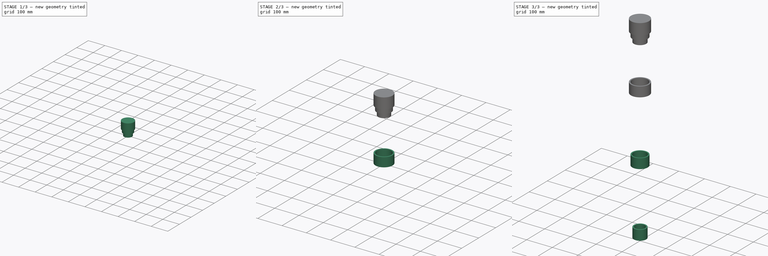
[diagram: build sequence overview — one tinted view per stage of 3, left to right]
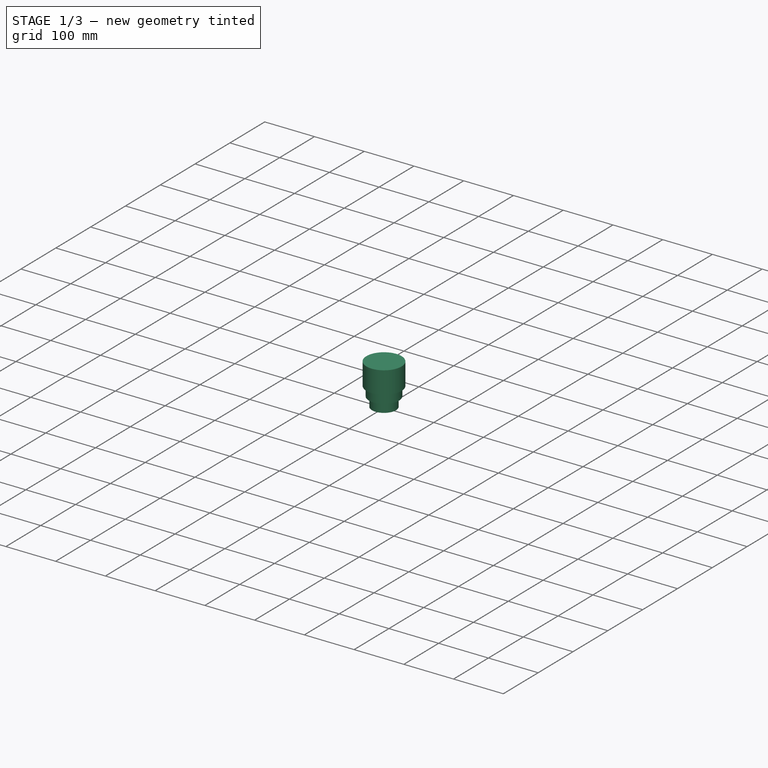
[diagram: stage 1 of 3 — iso view after this stage's code; geometry added in this stage tinted green]
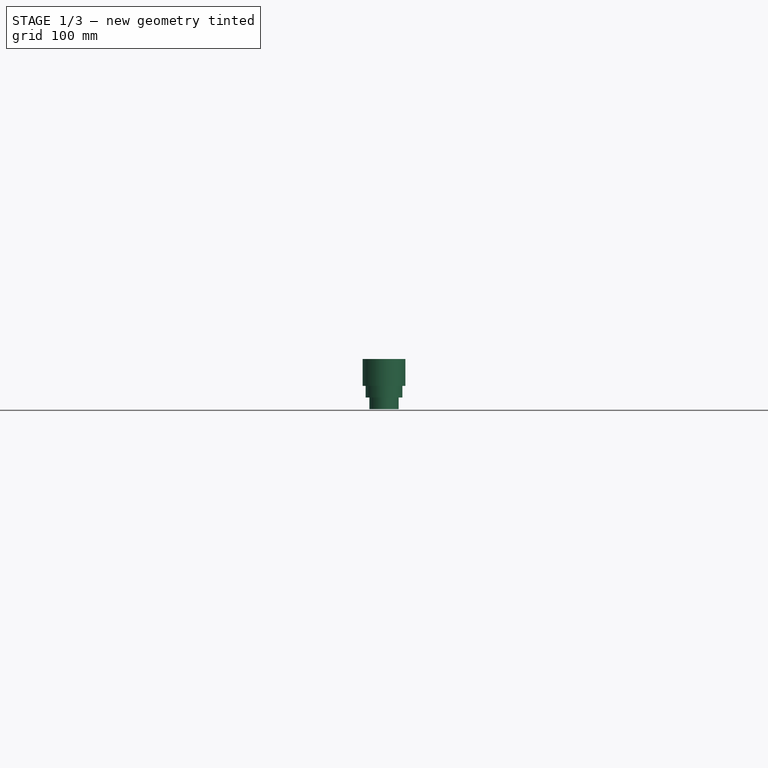
[diagram: stage 1 of 3 — front view after this stage's code; geometry added in this stage tinted green]
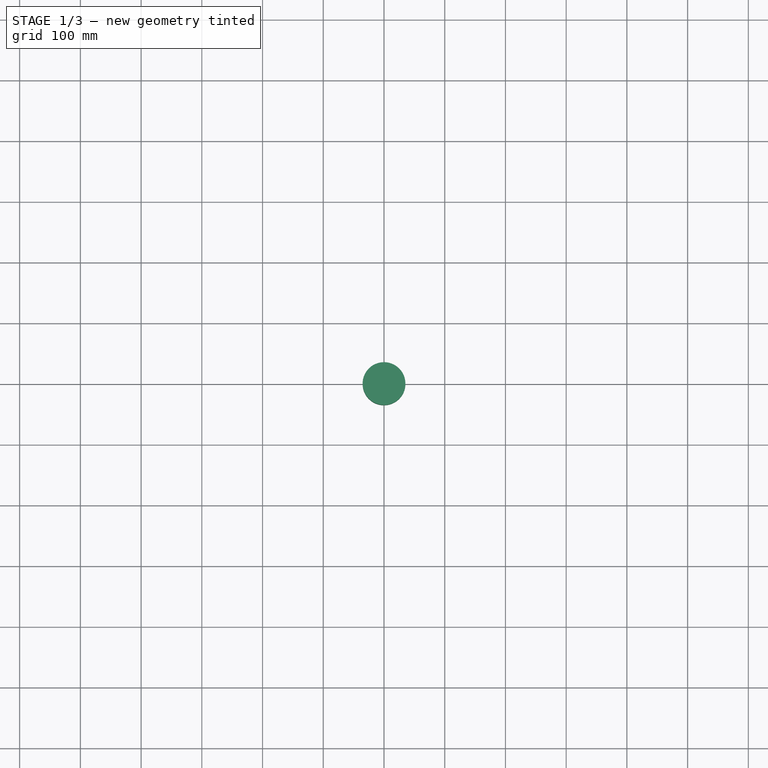
[diagram: stage 1 of 3 — top view after this stage's code; geometry added in this stage tinted green]
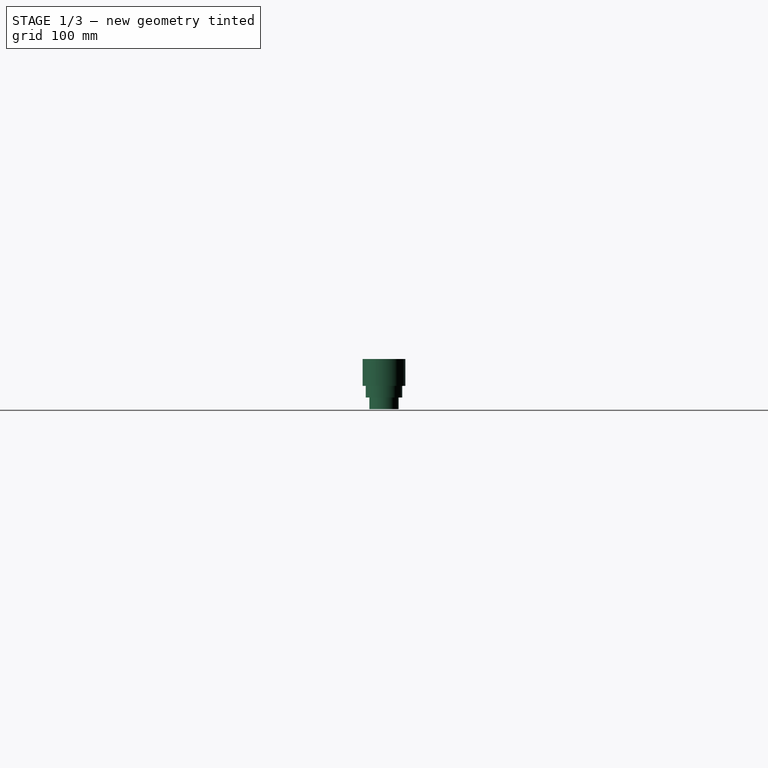
[diagram: stage 1 of 3 — right view after this stage's code; geometry added in this stage tinted green]
FCSTD DOCUMENT  (FreeCAD 0.16R6712 (Git))
Label: Tank FIller Cap
License: All rights reserved
LicenseURL: http://en.wikipedia.org/wiki/All_rights_reserved
objects: Sketcher::SketchObject×3, PartDesign::Pad×3, Part::Feature×3, App::FeaturePython×3, Part::Cylinder×1, Part::Compound×1
note: 14 computed .brp shape members not serialized (recipe doc carries the construction recipe); baked Part::Feature solids carry a one-line shape summary decoded from their .brp

FEATURE [Part::Cylinder] Cylinder  label="end"
  Angle = 360
  Height = 6.35
  Placement = pos=(0,0,762) rot=(0,0,1;0rad)
  Radius = 35.2425
FEATURE [Part::Feature] Pad002001  label="screw cap"
  Placement = pos=(0,0,723.9) rot=(0,0,1;0rad)
  shape: bbox 70.49 x 70.49 x 38.1 mm, 4 faces (baked)
FEATURE [Part::Feature] Pad001001  label="Pad001 2in NPT001"
  Placement = pos=(0,0,704.85) rot=(0,0,1;0rad)
  shape: bbox 60.33 x 60.33 x 38.1 mm, 4 faces (baked)
FEATURE [Part::Feature] Pad002002  label="Pad 1.5in NPT001"
  Placement = pos=(0,0,685.8) rot=(0,0,1;0rad)
  shape: bbox 48.26 x 48.26 x 38.1 mm, 4 faces (baked)
FEATURE [App::FeaturePython] planeConstraint01  # a2plus constraint (typed FeaturePython)
  Object1 = Cylinder
  Object2 = Pad002001
  SubElement1 = Face3
  SubElement2 = Face4
  Type = plane
  directionConstraint = 1
  offset = 0
FEATURE [App::FeaturePython] planeConstraint02  # a2plus constraint (typed FeaturePython)
  Object1 = Pad001001
  Object2 = Pad002001
  SubElement1 = Face4
  SubElement2 = Face3
  Type = plane
  directionConstraint = 0
  offset = -19.05
FEATURE [App::FeaturePython] planeConstraint03  # a2plus constraint (typed FeaturePython)
  Object1 = Pad002002
  Object2 = Pad001001
  SubElement1 = Face4
  SubElement2 = Face3
  Type = plane
  directionConstraint = 0
  offset = -19.05
FEATURE [Part::Compound] Compound  label="Power Cube Tank Filler Cap"
  Links = -> [Cylinder,Pad002002,Pad001001,Pad002001]
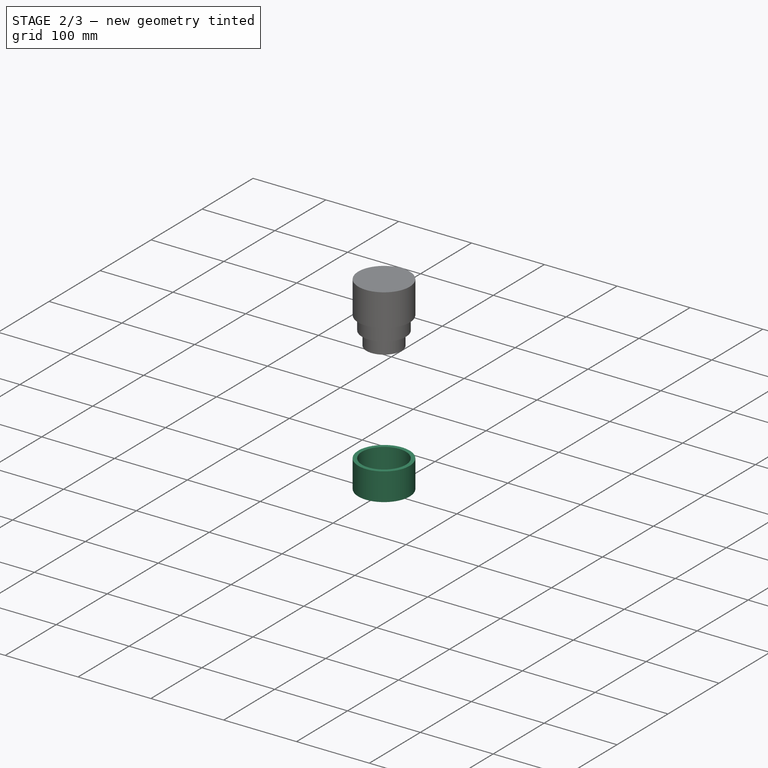
[diagram: stage 2 of 3 — iso view after this stage's code; geometry added in this stage tinted green]
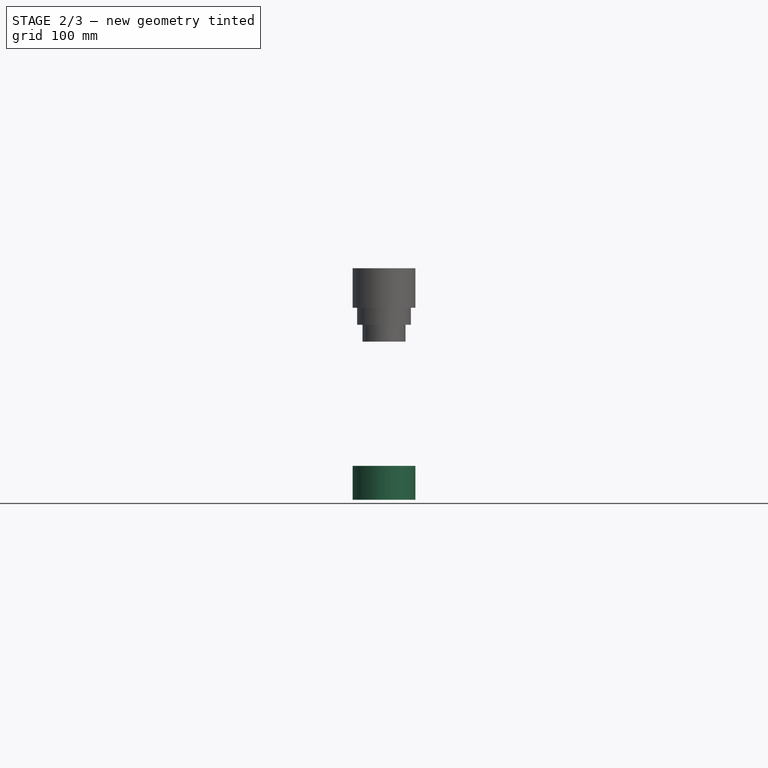
[diagram: stage 2 of 3 — front view after this stage's code; geometry added in this stage tinted green]
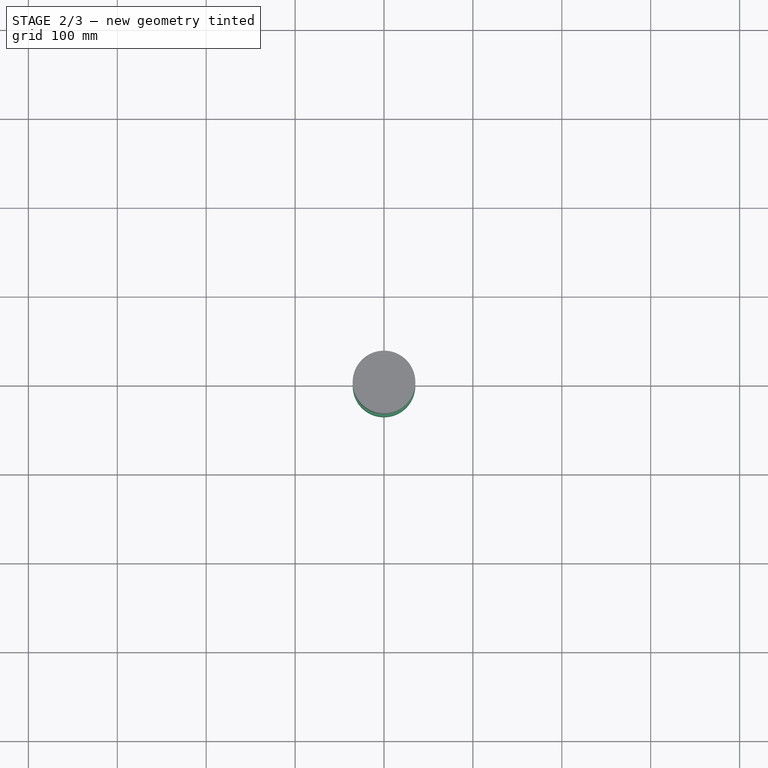
[diagram: stage 2 of 3 — top view after this stage's code; geometry added in this stage tinted green]
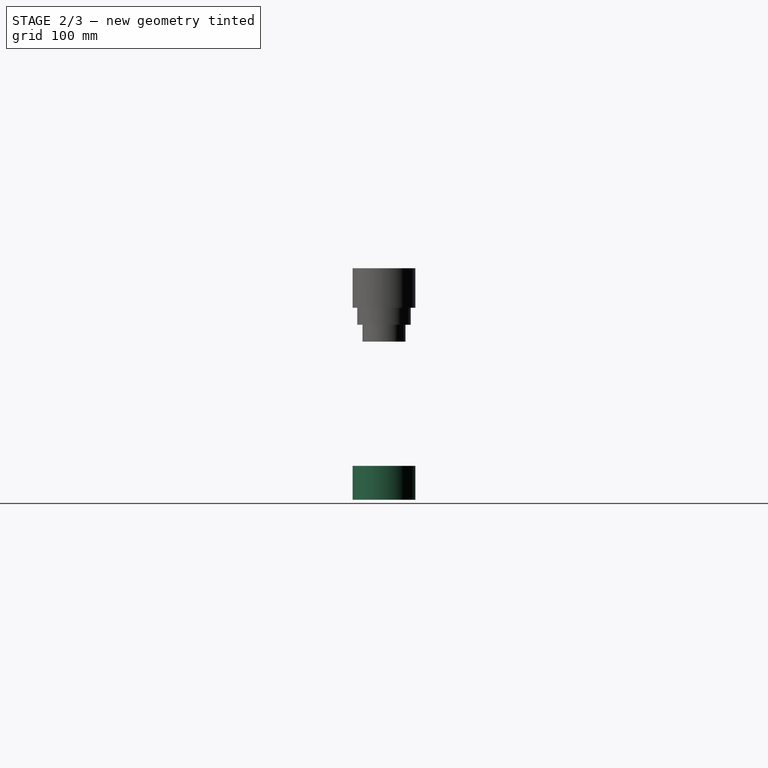
[diagram: stage 2 of 3 — right view after this stage's code; geometry added in this stage tinted green]
FEATURE [Sketcher::SketchObject] Sketch002
  Placement = pos=(0,0,508) rot=(0,0,1;0rad)
  sketch-geometry (2):
    g0: Circle CenterX=0 CenterY=0 CenterZ=0 NormalX=0 NormalY=0 NormalZ=1 Radius=30.1625
    g1: Circle CenterX=0 CenterY=0 CenterZ=0 NormalX=0 NormalY=0 NormalZ=1 Radius=35.2425
  constraints (4):
    c: Coincident(g0,g-1)
    c: Radius(g0) = 30.1625
    c: Coincident(g1,g-1)
    c: Radius(g1) = 35.2425  'cap'
FEATURE [PartDesign::Pad] Pad002
  Length = 38.1
  Length2 = 100
  Placement = pos=(0,0,508) rot=(0,0,1;0rad)
  Sketch = -> Sketch002
  Type = 0
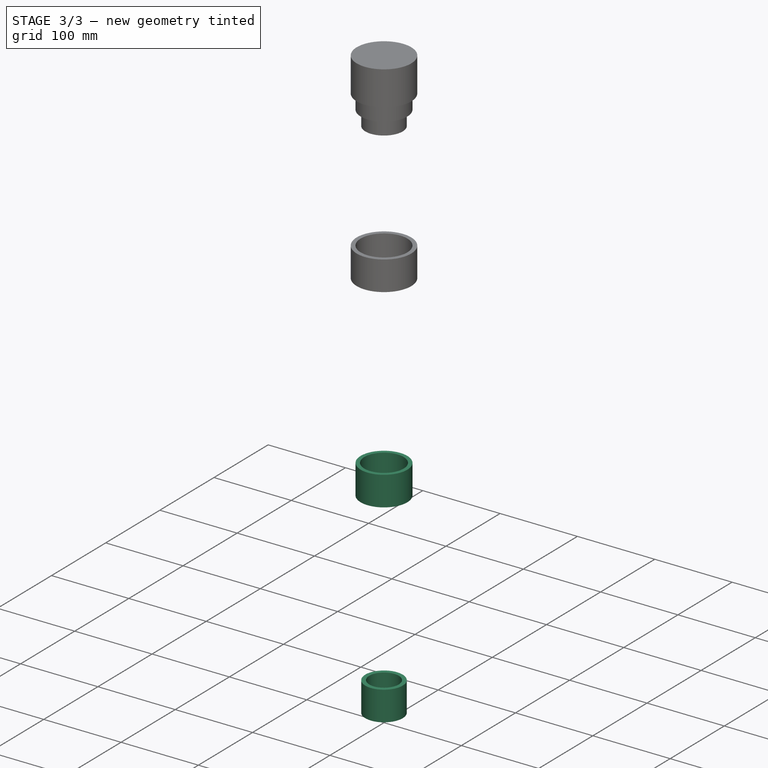
[diagram: stage 3 of 3 — iso view after this stage's code; geometry added in this stage tinted green]
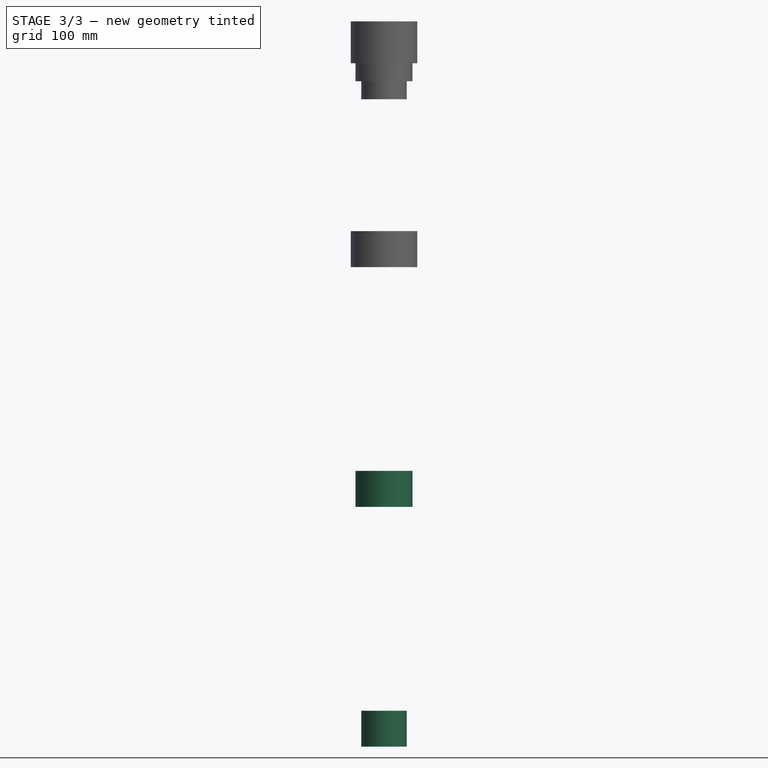
[diagram: stage 3 of 3 — front view after this stage's code; geometry added in this stage tinted green]
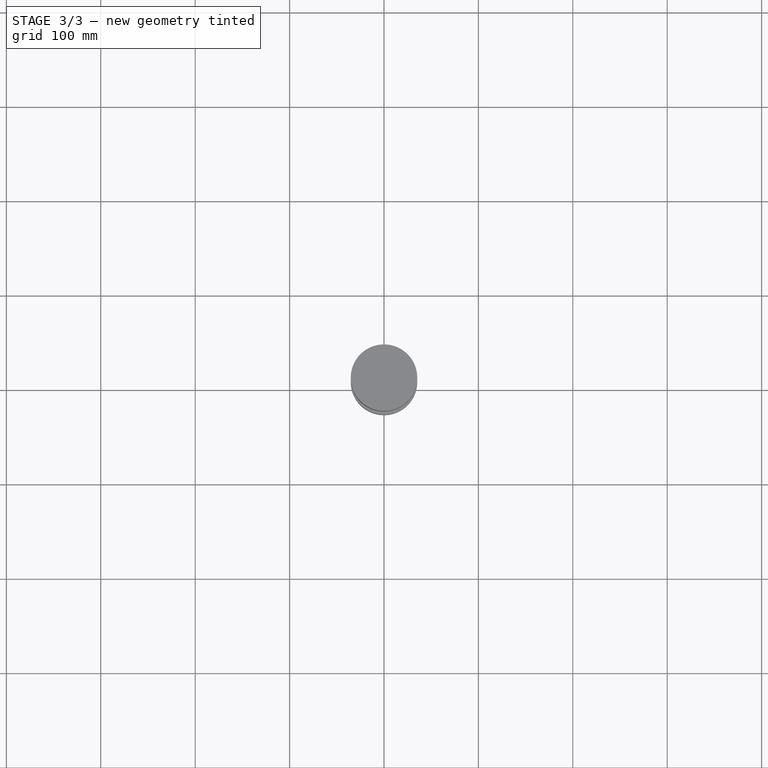
[diagram: stage 3 of 3 — top view after this stage's code; geometry added in this stage tinted green]
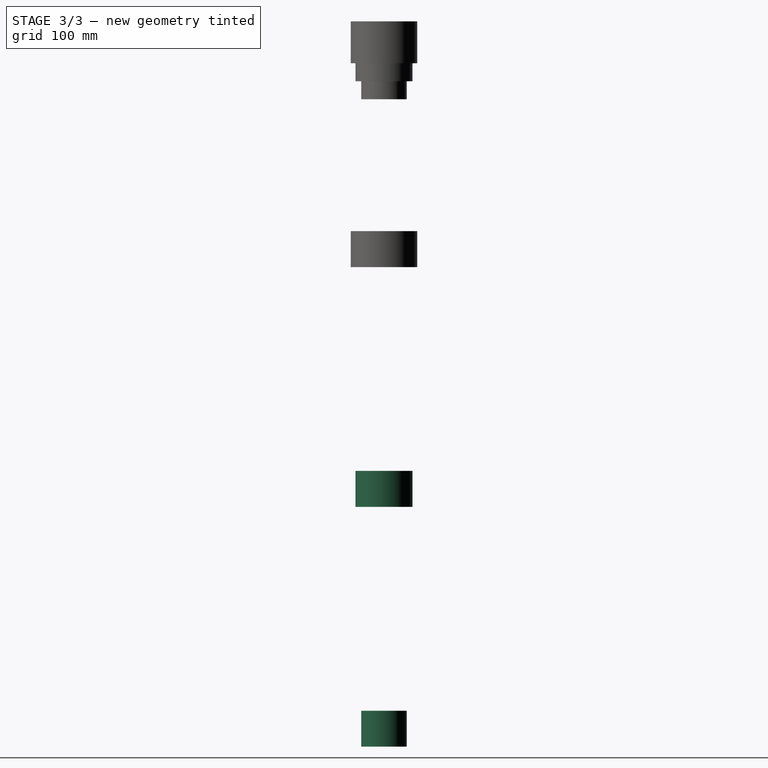
[diagram: stage 3 of 3 — right view after this stage's code; geometry added in this stage tinted green]
FEATURE [Sketcher::SketchObject] Sketch
  sketch-geometry (2):
    g0: Circle CenterX=0 CenterY=0 CenterZ=0 NormalX=0 NormalY=0 NormalZ=1 Radius=24.13
    g1: Circle CenterX=0 CenterY=0 CenterZ=0 NormalX=0 NormalY=0 NormalZ=1 Radius=19.05
  constraints (4):
    c: Coincident(g0,g-1)
    c: Coincident(g1,g-1)
    c: Radius(g0) = 24.13
    c: Radius(g1) = 19.05
FEATURE [PartDesign::Pad] Pad  label="Pad 1.5in NPT"
  Length = 38.1
  Length2 = 100
  Sketch = -> Sketch
  Type = 0
FEATURE [Sketcher::SketchObject] Sketch001
  Placement = pos=(0,0,254) rot=(0,0,1;0rad)
  sketch-geometry (2):
    g0: Circle CenterX=0 CenterY=0 CenterZ=0 NormalX=0 NormalY=0 NormalZ=1 Radius=25.4
    g1: Circle CenterX=0 CenterY=0 CenterZ=0 NormalX=0 NormalY=0 NormalZ=1 Radius=30.1625
  constraints (4):
    c: Coincident(g0,g-1)
    c: Radius(g0) = 25.4
    c: Coincident(g1,g-1)
    c: Radius(g1) = 30.1625  'OD of 2in NPT'
FEATURE [PartDesign::Pad] Pad001  label="Pad001 2in NPT"
  Length = 38.1
  Length2 = 100
  Placement = pos=(0,0,254) rot=(0,0,1;0rad)
  Sketch = -> Sketch001
  Type = 0
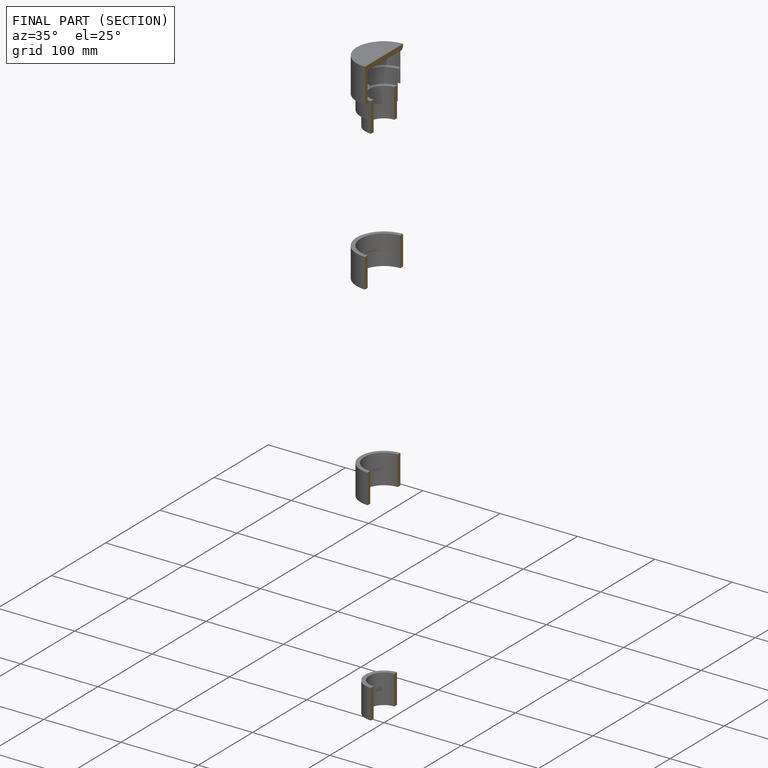
[diagram: finished part — half-section view (interior)]
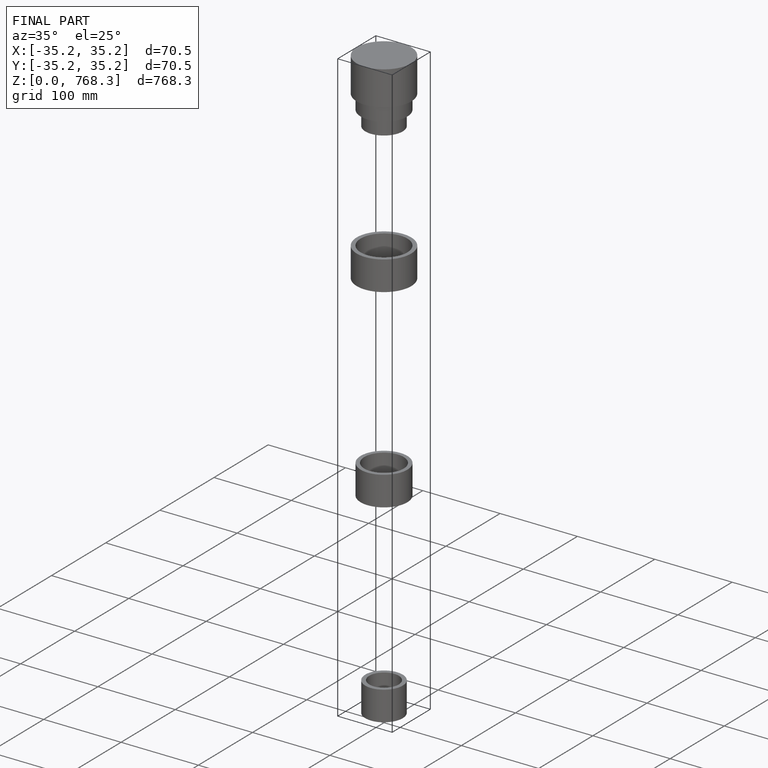
[diagram: finished part — iso view with bounding-box wireframe]
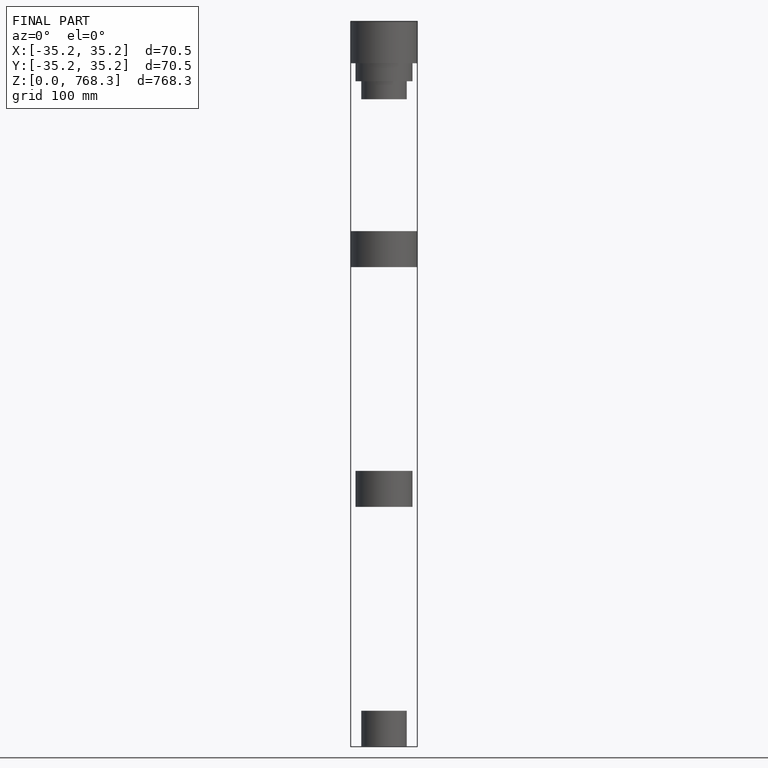
[diagram: finished part — front view with bounding-box wireframe]
